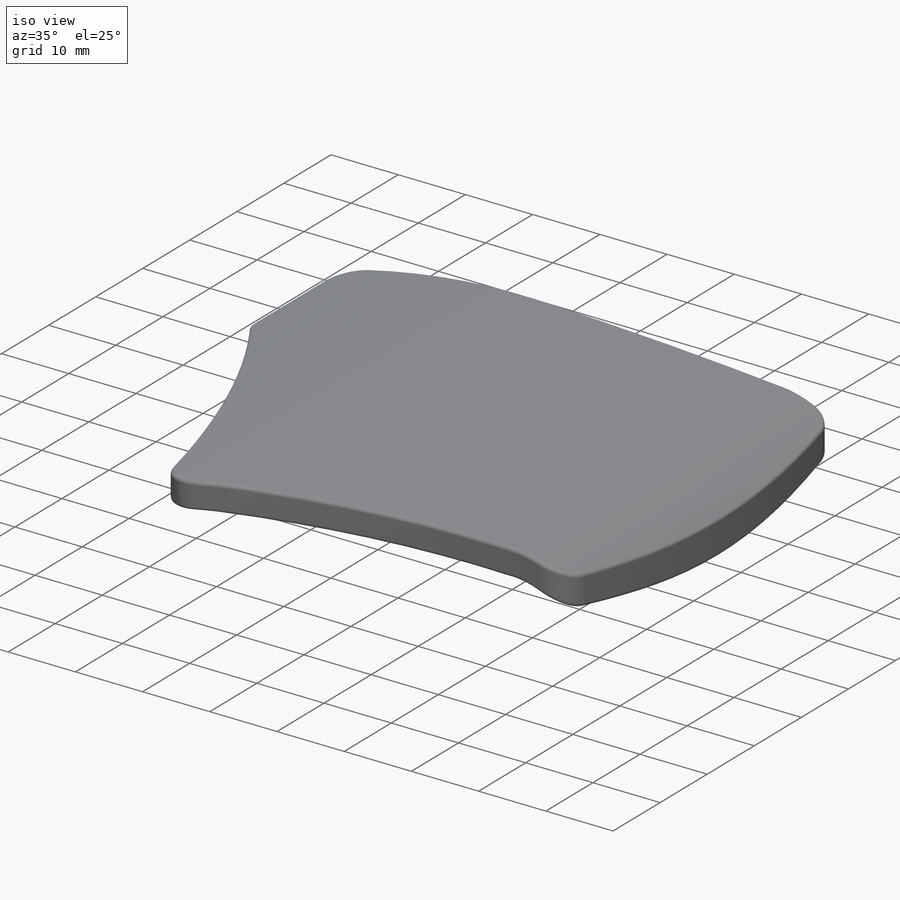
[diagram: iso view]
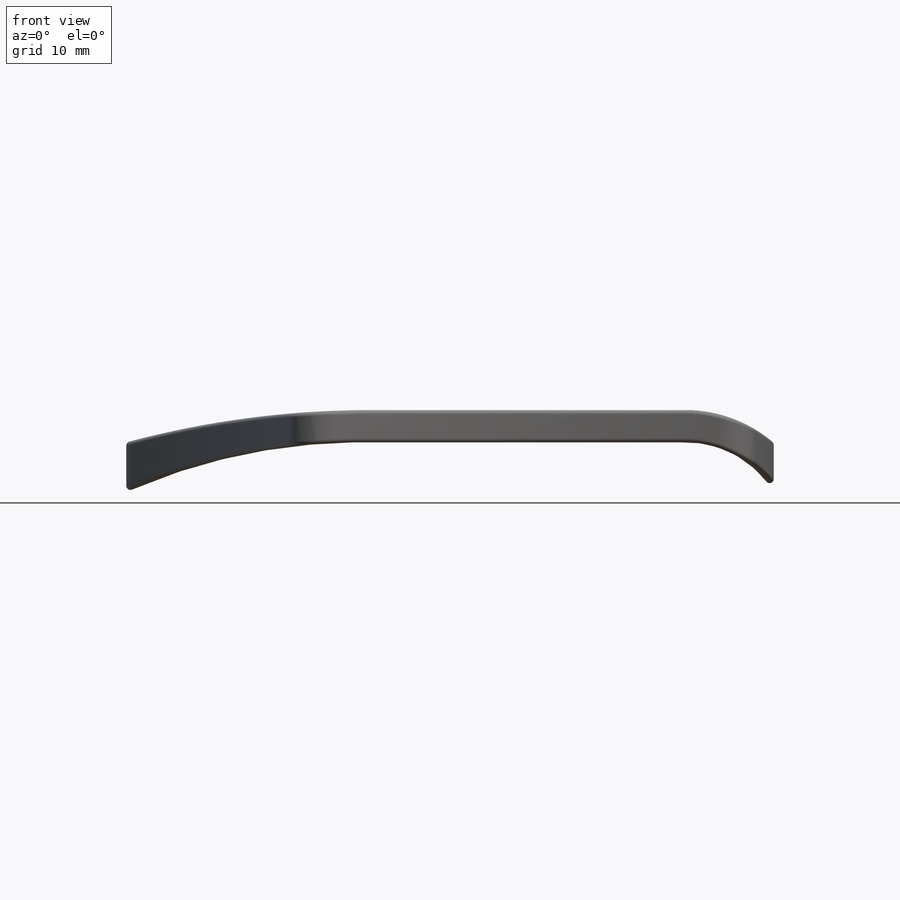
[diagram: front view]
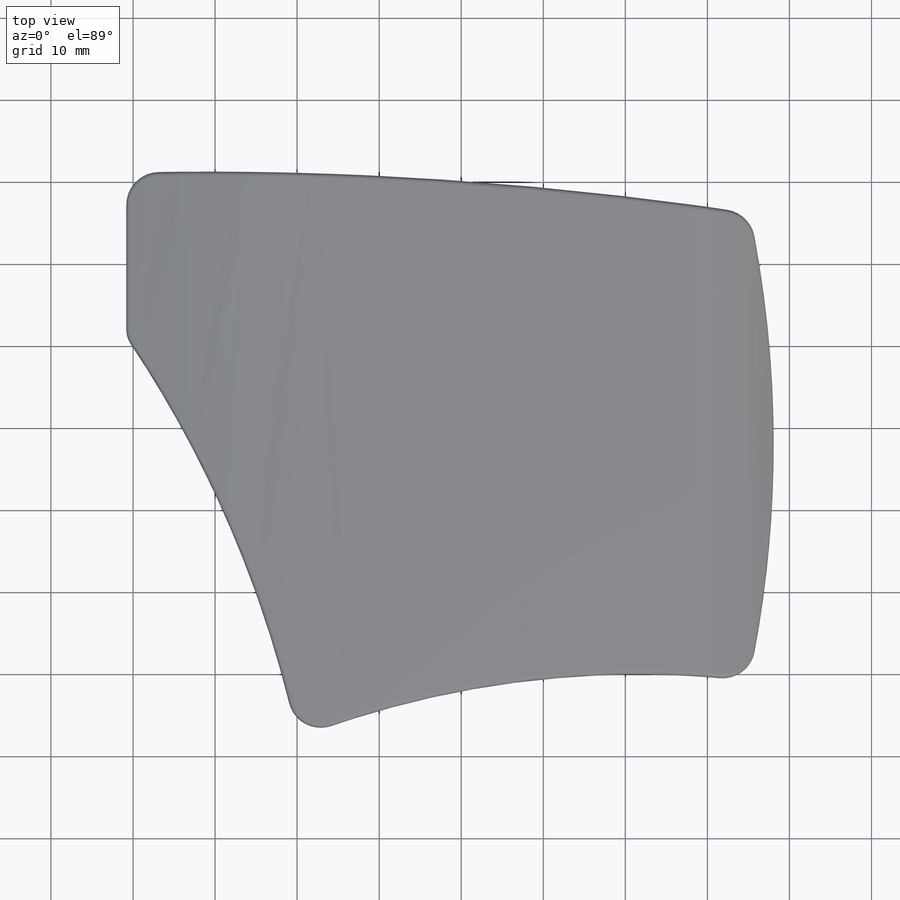
[diagram: top view]
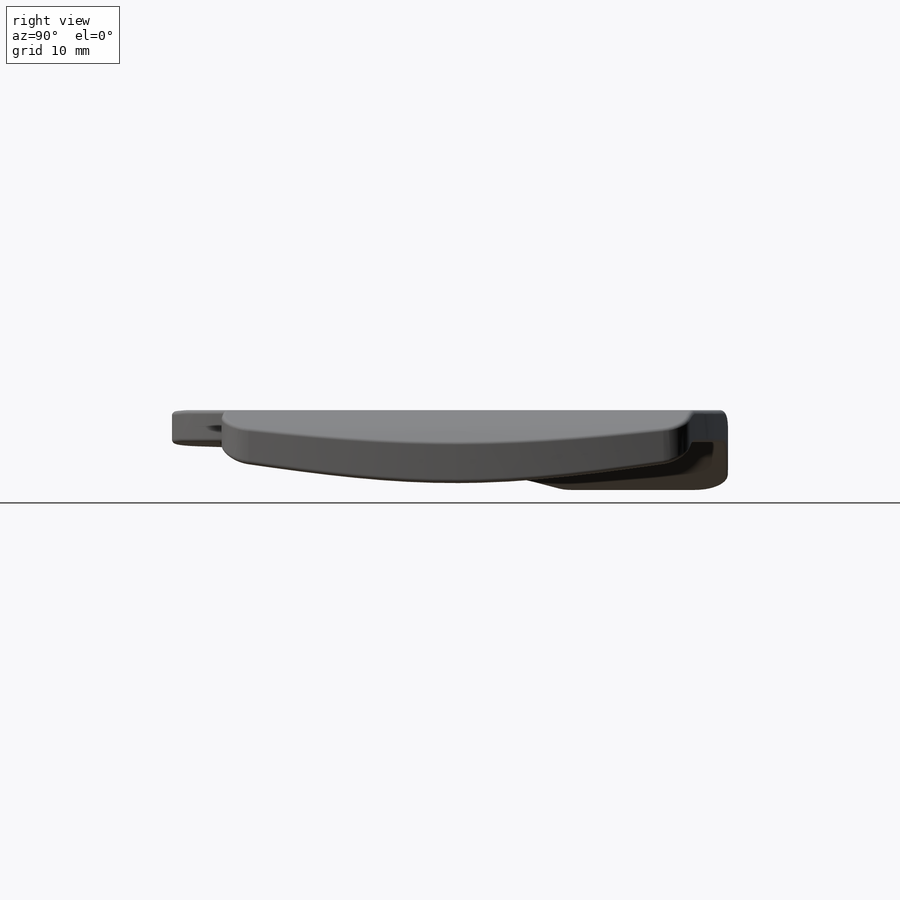
[diagram: right view]
SOLIDWORKS PART (.sldprt)
format: sldprt  version: not decoded by parser v0  size: 387,072 bytes
history: native  units: mm
features: fillet x5, sketch x2, material x1, extrude x1, cut_extrude x1 (+12 scaffold rows collapsed)
feature tree (22):
  scaffold x12  (default folders/planes/origin — collapsed)
  material  "Material <not specified>"
  sketch  "Sketch1"  dims[c1.D6=~122.714213mm c1.D7=~450.535954mm c1.D8=~141.118991mm c1.D9=~114.666714mm c1.D10=~137.987142mm c1.D1=76.0mm c1.D2=57.0mm c1.D3=55.0mm c1.D4=20.0mm c1.D5=5.0mm c2.D6=10.0mm c2.D11=~21.576381mm c2.D12=29.1829mm c2.D13=~35.18282mm c2.D14=~32.287918mm c2.D15=~102.054036mm c2.D16=~166.391392mm c3.D11=~21.576381mm c3.D12=~35.18282mm c3.D13=~28.914556mm c3.D14=~48.284545mm c3.D15=~113.301565mm c3.D16=~205.328699mm c3.D17=~479.369767mm c4.D13=~28.914556mm c4.D6=7.0mm]
  extrude  "Boss-Extrude2"  Depth=10mm
  sketch  "Sketch4"  dims[c1.D1=~106.23867mm c1.D2=~13.688916mm c1.D3=109.1789mm c1.D4=~16.539955mm c2.D1=~12.609179mm c2.D2=~70.856622mm c2.D3=~114.416978mm c2.D5=~26.619735mm c2.D6=~26.994863mm c2.D7=~27.946967mm c2.D8=~23.870498mm c2.D9=~24.93524mm c2.D10=~28.56323mm c3.D5=~26.619735mm c3.D6=~27.946967mm c3.D7=~15.188803mm c3.D9=~19.309181mm c4.D7=~15.188803mm c4.D1=4.82mm]
  cut_extrude  "Cut-Extrude1"  [1 undecoded]
  fillet  "Fillet1"  Radius=4mm
  fillet  "Fillet2"  Radius=4mm
  fillet  "Fillet4"  Radius=3mm
  fillet  "Fillet6"  Radius=0.5mm
  fillet  "Fillet7"  Radius=0.5mm
decode coverage: 8 of 9 modeling features carry decoded parameters
note: ~ marks probable driven/reference dimensions
note: 1 parameter value undecoded
note: suppression state not decoded; provenance and decode notes live in map.json
